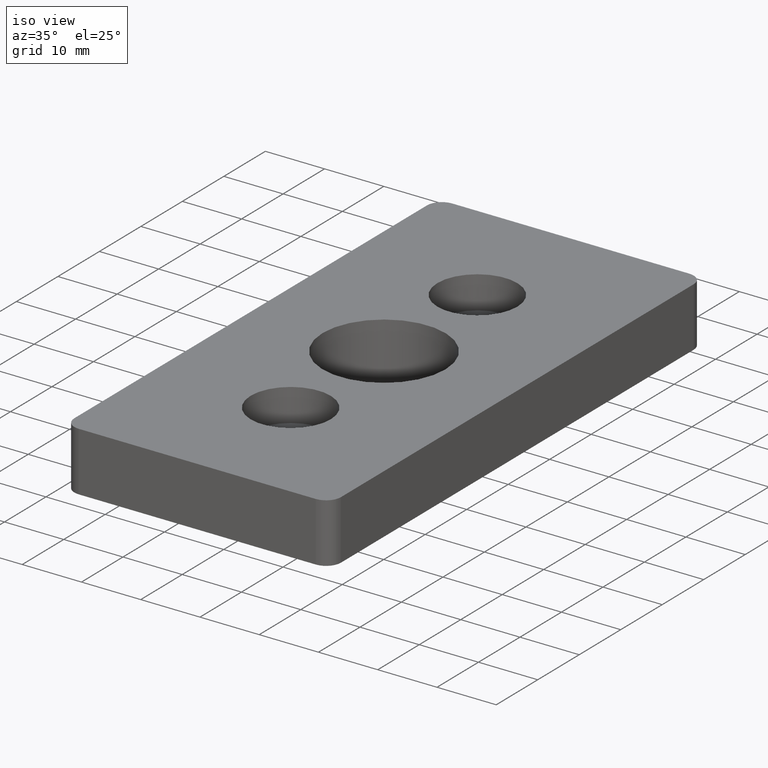
[diagram: clean part render]
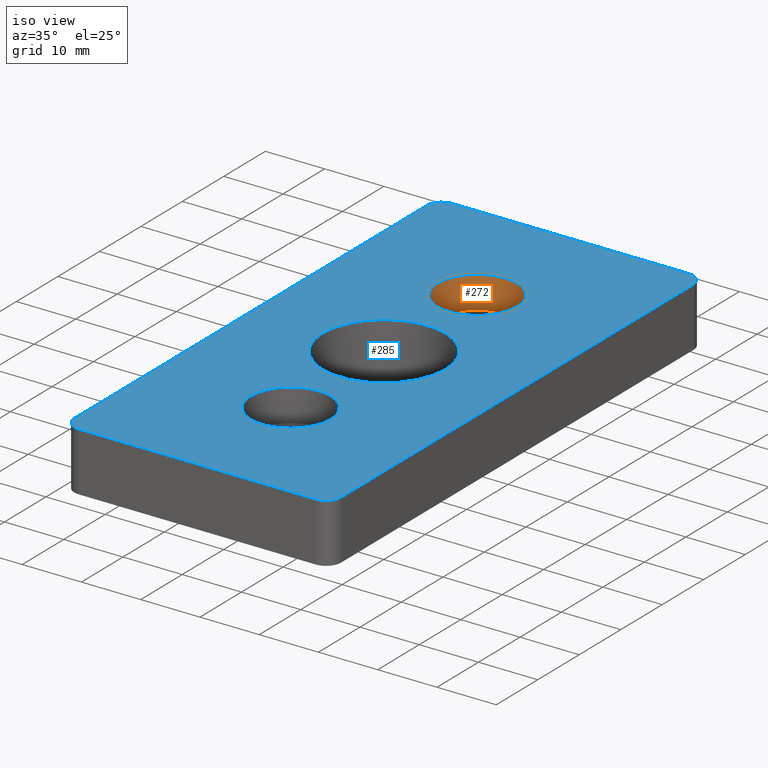
[diagram: same view with the hole feature highlighted: cylindrical wall and planar end face, labeled with their STEP entity ids]
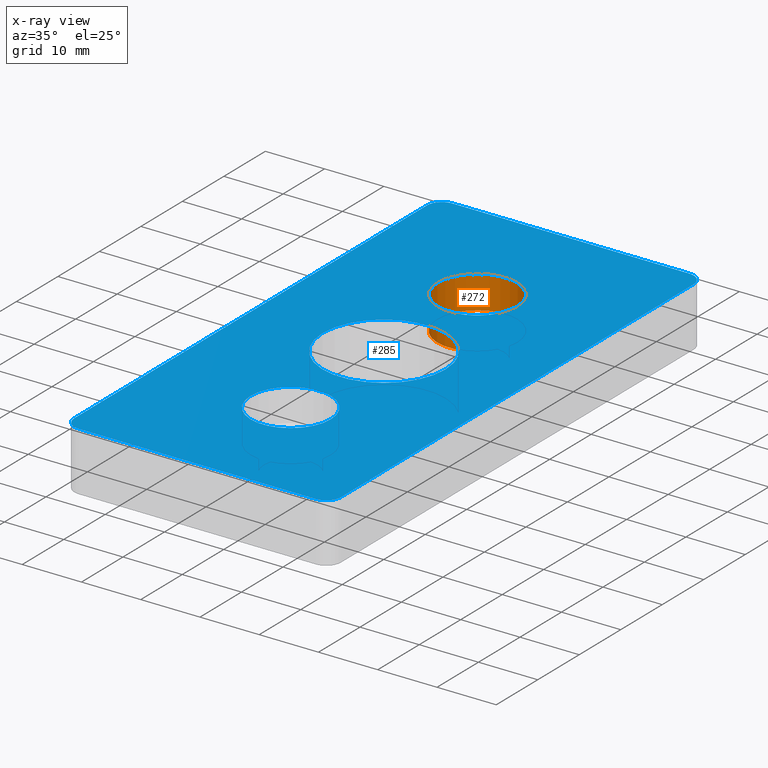
[diagram: x-ray of the same camera — body ghosted, the hole faces saturated]
A machine part, iso view. The highlighted faces form one hole feature of diameter 13.5 mm: the cylindrical wall (entity #272, orange) and its adjacent planar end face (entity #285, blue) — they share a circular edge in the B-rep.
The next image is the same camera in x-ray (body ghosted, the hole faces saturated) — the bore reads through the body.
Wall:
#57=FACE_BOUND('',#90,.T.);
#70=FACE_OUTER_BOUND('',#89,.T.);
#89=EDGE_LOOP('',(#197));
#90=EDGE_LOOP('',(#198));
#117=CIRCLE('',#293,6.75);
#119=CIRCLE('',#296,6.75);
#135=VERTEX_POINT('',#419);
#137=VERTEX_POINT('',#424);
#161=EDGE_CURVE('',#135,#135,#117,.T.);
#163=EDGE_CURVE('',#137,#137,#119,.T.);
#197=ORIENTED_EDGE('',*,*,#163,.F.);
#198=ORIENTED_EDGE('',*,*,#161,.F.);
#262=CYLINDRICAL_SURFACE('',#295,6.75);
#272=ADVANCED_FACE('',(#70,#57),#262,.F.);
#293=AXIS2_PLACEMENT_3D('',#420,#334,#335);
#295=AXIS2_PLACEMENT_3D('',#423,#338,#339);
#296=AXIS2_PLACEMENT_3D('',#425,#340,#341);
#334=DIRECTION('center_axis',(0.,0.,1.));
#335=DIRECTION('ref_axis',(1.,0.,0.));
#338=DIRECTION('center_axis',(0.,0.,1.));
#339=DIRECTION('ref_axis',(1.,0.,0.));
#340=DIRECTION('center_axis',(0.,0.,-1.));
#341=DIRECTION('ref_axis',(1.,0.,0.));
#419=CARTESIAN_POINT('',(31.8756764380845,68.1013335529333,4.5));
#420=CARTESIAN_POINT('Origin',(25.1256764380845,68.1013335529333,4.5));
#423=CARTESIAN_POINT('Origin',(25.1256764380845,68.1013335529333,7.25));
#424=CARTESIAN_POINT('',(31.8756764380845,68.1013335529333,10.));
#425=CARTESIAN_POINT('Origin',(25.1256764380845,68.1013335529333,10.));
End face:
#18=LINE('',#453,#34);
#22=LINE('',#465,#38);
#26=LINE('',#477,#42);
#30=LINE('',#487,#46);
#34=VECTOR('',#371,40.);
#38=VECTOR('',#383,85.);
#42=VECTOR('',#395,40.);
#46=VECTOR('',#407,85.);
#53=PLANE('',#322);
#62=FACE_BOUND('',#108,.T.);
#63=FACE_BOUND('',#109,.T.);
#64=FACE_BOUND('',#110,.T.);
#83=FACE_OUTER_BOUND('',#107,.T.);
#107=EDGE_LOOP('',(#239,#240,#241,#242,#243,#244,#245,#246));
#108=EDGE_LOOP('',(#247));
#109=EDGE_LOOP('',(#248));
#110=EDGE_LOOP('',(#249));
#116=CIRCLE('',#291,10.376);
#119=CIRCLE('',#296,6.75);
#123=CIRCLE('',#303,6.75);
#126=CIRCLE('',#308,2.5);
#128=CIRCLE('',#312,2.5);
#130=CIRCLE('',#316,2.5);
#132=CIRCLE('',#320,2.5);
#134=VERTEX_POINT('',#416);
#137=VERTEX_POINT('',#424);
#141=VERTEX_POINT('',#435);
#145=VERTEX_POINT('',#444);
#146=VERTEX_POINT('',#446);
#148=VERTEX_POINT('',#452);
#150=VERTEX_POINT('',#458);
#152=VERTEX_POINT('',#464);
#154=VERTEX_POINT('',#470);
#156=VERTEX_POINT('',#476);
#158=VERTEX_POINT('',#482);
#160=EDGE_CURVE('',#134,#134,#116,.T.);
#163=EDGE_CURVE('',#137,#137,#119,.T.);
#167=EDGE_CURVE('',#141,#141,#123,.T.);
#171=EDGE_CURVE('',#146,#145,#126,.T.);
#174=EDGE_CURVE('',#148,#146,#18,.T.);
#177=EDGE_CURVE('',#150,#148,#128,.T.);
#180=EDGE_CURVE('',#152,#150,#22,.T.);
#183=EDGE_CURVE('',#154,#152,#130,.T.);
#186=EDGE_CURVE('',#156,#154,#26,.T.);
#189=EDGE_CURVE('',#158,#156,#132,.T.);
#192=EDGE_CURVE('',#145,#158,#30,.T.);
#239=ORIENTED_EDGE('',*,*,#192,.T.);
#240=ORIENTED_EDGE('',*,*,#189,.T.);
#241=ORIENTED_EDGE('',*,*,#186,.T.);
#242=ORIENTED_EDGE('',*,*,#183,.T.);
#243=ORIENTED_EDGE('',*,*,#180,.T.);
#244=ORIENTED_EDGE('',*,*,#177,.T.);
#245=ORIENTED_EDGE('',*,*,#174,.T.);
#246=ORIENTED_EDGE('',*,*,#171,.T.);
#247=ORIENTED_EDGE('',*,*,#160,.T.);
#248=ORIENTED_EDGE('',*,*,#163,.T.);
#249=ORIENTED_EDGE('',*,*,#167,.T.);
#285=ADVANCED_FACE('',(#83,#62,#63,#64),#53,.T.);
#291=AXIS2_PLACEMENT_3D('',#417,#330,#331);
#296=AXIS2_PLACEMENT_3D('',#425,#340,#341);
#303=AXIS2_PLACEMENT_3D('',#436,#354,#355);
#308=AXIS2_PLACEMENT_3D('',#447,#365,#366);
#312=AXIS2_PLACEMENT_3D('',#459,#377,#378);
#316=AXIS2_PLACEMENT_3D('',#471,#389,#390);
#320=AXIS2_PLACEMENT_3D('',#483,#401,#402);
#322=AXIS2_PLACEMENT_3D('',#488,#408,#409);
#330=DIRECTION('center_axis',(0.,0.,-1.));
#331=DIRECTION('ref_axis',(1.,0.,0.));
#340=DIRECTION('center_axis',(0.,0.,-1.));
#341=DIRECTION('ref_axis',(1.,0.,0.));
#354=DIRECTION('center_axis',(0.,0.,-1.));
#355=DIRECTION('ref_axis',(1.,0.,0.));
#365=DIRECTION('center_axis',(0.,0.,1.));
#366=DIRECTION('ref_axis',(0.,1.,0.));
#371=DIRECTION('',(-1.,0.,0.));
#377=DIRECTION('center_axis',(0.,0.,1.));
#378=DIRECTION('ref_axis',(1.,0.,0.));
#383=DIRECTION('',(0.,1.,0.));
#389=DIRECTION('center_axis',(0.,0.,1.));
#390=DIRECTION('ref_axis',(0.,-1.,0.));
#395=DIRECTION('',(1.,0.,0.));
#401=DIRECTION('center_axis',(0.,0.,1.));
#402=DIRECTION('ref_axis',(-1.,0.,0.));
#407=DIRECTION('',(3.33066907387547E-16,-1.,0.));
#408=DIRECTION('center_axis',(0.,0.,1.));
#409=DIRECTION('ref_axis',(1.,0.,0.));
#416=CARTESIAN_POINT('',(35.5016764380845,45.6013335529333,10.));
#417=CARTESIAN_POINT('Origin',(25.1256764380845,45.6013335529333,10.));
#424=CARTESIAN_POINT('',(31.8756764380845,68.1013335529333,10.));
#425=CARTESIAN_POINT('Origin',(25.1256764380845,68.1013335529333,10.));
#435=CARTESIAN_POINT('',(31.8756764380845,23.1013335529333,10.));
#436=CARTESIAN_POINT('Origin',(25.1256764380845,23.1013335529333,10.));
#444=CARTESIAN_POINT('',(2.62567643808447,88.1013335529333,10.));
#446=CARTESIAN_POINT('',(5.12567643808447,90.6013335529333,10.));
#447=CARTESIAN_POINT('Origin',(5.12567643808447,88.1013335529333,10.));
#452=CARTESIAN_POINT('',(45.1256764380845,90.6013335529333,10.));
#453=CARTESIAN_POINT('',(45.1256764380845,90.6013335529333,10.));
#458=CARTESIAN_POINT('',(47.6256764380845,88.1013335529333,10.));
#459=CARTESIAN_POINT('Origin',(45.1256764380845,88.1013335529333,10.));
#464=CARTESIAN_POINT('',(47.6256764380845,3.10133355293328,10.));
#465=CARTESIAN_POINT('',(47.6256764380845,3.10133355293328,10.));
#470=CARTESIAN_POINT('',(45.1256764380845,0.601333552933276,10.));
#471=CARTESIAN_POINT('Origin',(45.1256764380845,3.10133355293328,10.));
#476=CARTESIAN_POINT('',(5.1256764380845,0.601333552933276,10.));
#477=CARTESIAN_POINT('',(5.1256764380845,0.601333552933284,10.));
#482=CARTESIAN_POINT('',(2.6256764380845,3.10133355293328,10.));
#483=CARTESIAN_POINT('Origin',(5.1256764380845,3.10133355293328,10.));
#487=CARTESIAN_POINT('',(2.62567643808447,88.1013335529333,10.));
#488=CARTESIAN_POINT('Origin',(25.1256764380845,45.6013335529333,10.));